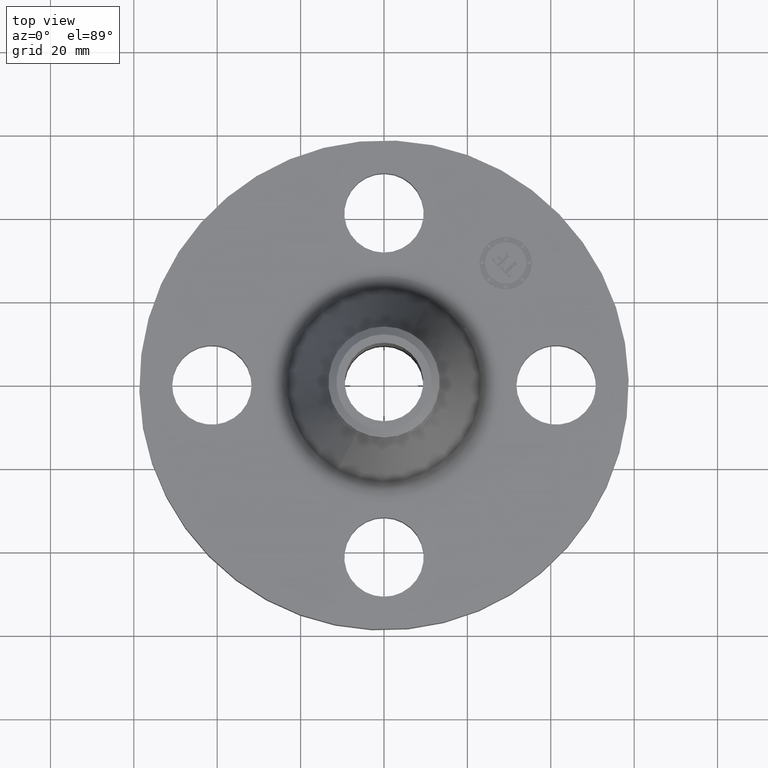
[diagram: clean part render]
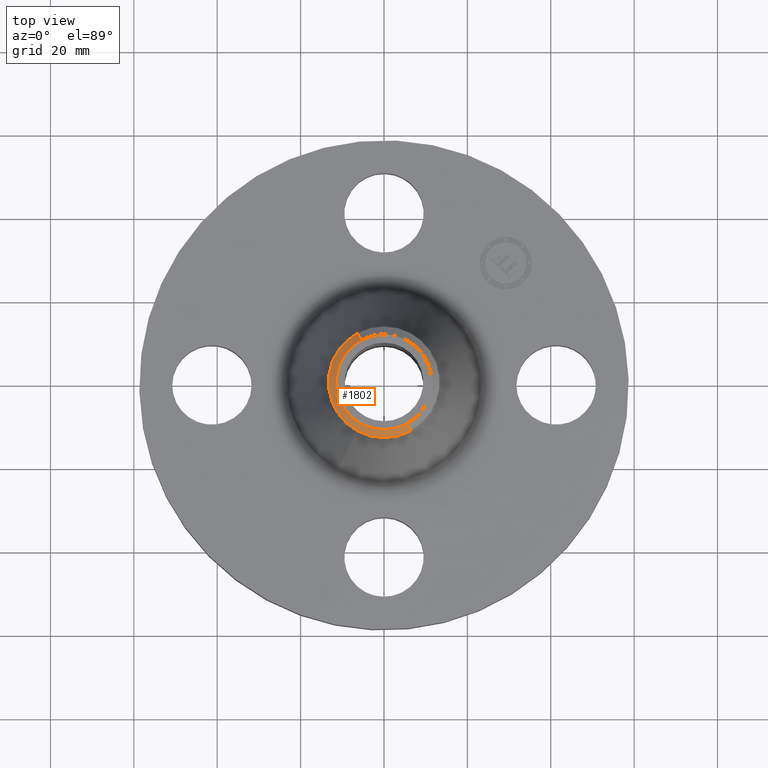
[diagram: same view with one face highlighted and labeled with its STEP entity id]
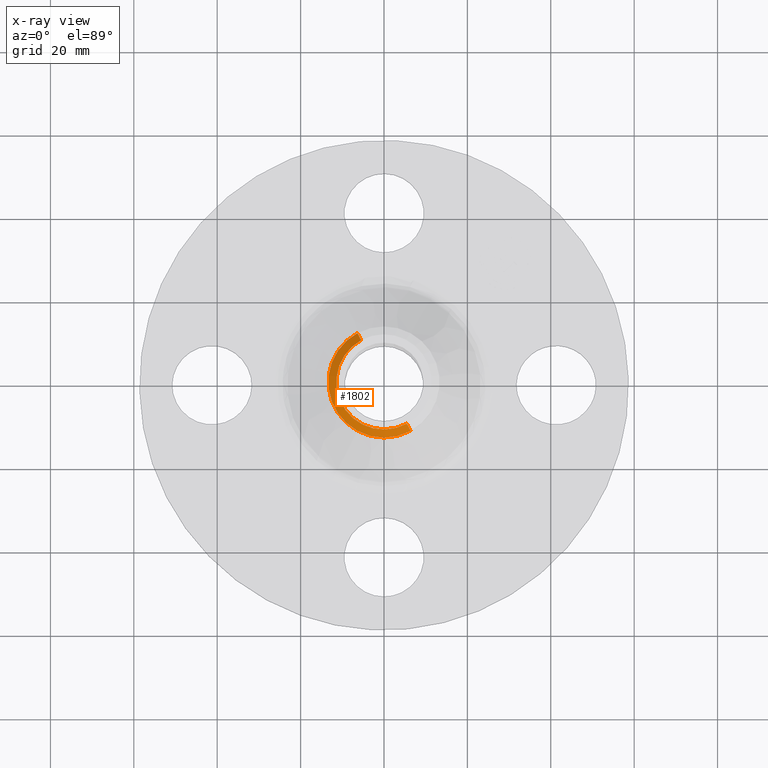
[diagram: x-ray of the same camera — body ghosted, the highlighted face saturated]
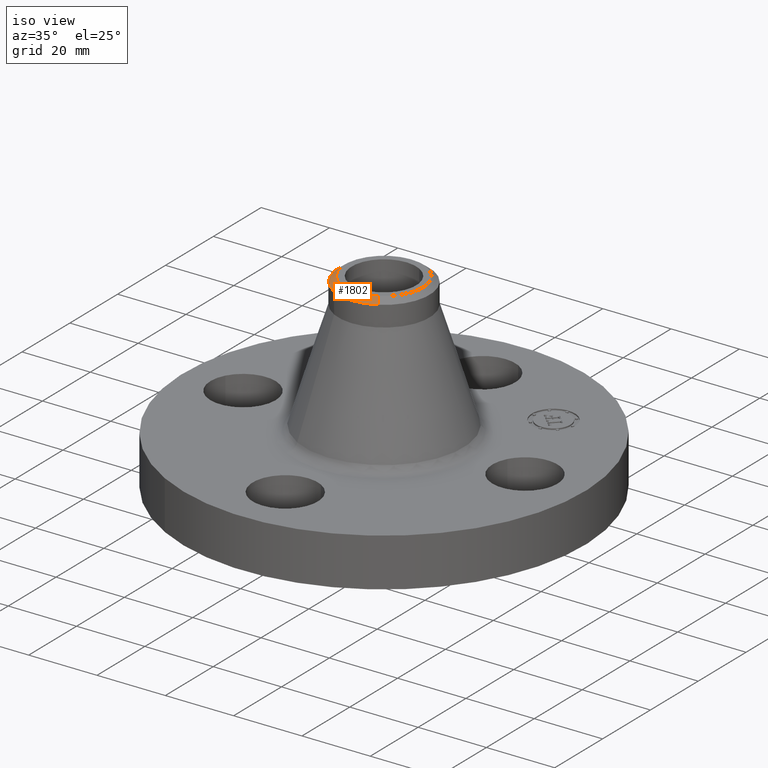
[diagram: same view with one face highlighted and labeled with its STEP entity id]
A machine part, top view. The second image highlights one B-rep face of the part: STEP entity #1802.
The next image is the same camera in x-ray: the body ghosted, the highlighted face saturated — about 0% of this face is hidden behind the body in this view.
A second angle (iso view) of the same face is appended — the face is thin or edge-on in the first view.
In plain terms, the highlighted conical surface has half-angle 52.5 deg.
Its self-contained STEP definition (entity closure, byte-faithful):
#1130=AXIS2_PLACEMENT_3D('Circle Axis2P3D',#1128,#1129,$) ;
#1169=AXIS2_PLACEMENT_3D('Circle Axis2P3D',#1167,#1168,$) ;
#1761=AXIS2_PLACEMENT_3D('Circle Axis2P3D',#1759,#1760,$) ;
#1783=AXIS2_PLACEMENT_3D('Cone Axis2P3D',#1780,#1781,#1782) ;
#1125=CARTESIAN_POINT('Vertex',(-0.251698407768,-0.460730844994,2.13225109173)) ;
#1128=CARTESIAN_POINT('Axis2P3D Location',(0.,0.,2.13225109173)) ;
#1132=CARTESIAN_POINT('Vertex',(-0.251698407768,0.460730844994,2.13225109173)) ;
#1164=CARTESIAN_POINT('Vertex',(0.251698407768,-0.460730844994,2.13225109173)) ;
#1167=CARTESIAN_POINT('Axis2P3D Location',(0.,0.,2.13225109173)) ;
#1754=CARTESIAN_POINT('Vertex',(0.215616917233,-0.394684119588,2.19000000001)) ;
#1756=CARTESIAN_POINT('Vertex',(-0.215616917233,0.394684119588,2.19000000001)) ;
#1759=CARTESIAN_POINT('Axis2P3D Location',(1.28117289306E-011,1.0465679067E-011,2.19000000001)) ;
#1780=CARTESIAN_POINT('Axis2P3D Location',(0.,0.,2.19000000001)) ;
#1785=CARTESIAN_POINT('Line Origine',(0.2336576625,-0.427707482289,2.16112554587)) ;
#1790=CARTESIAN_POINT('Line Origine',(-0.2336576625,0.427707482289,2.16112554587)) ;
#1129=DIRECTION('Axis2P3D Direction',(-0.,0.,-0.0393700787402)) ;
#1168=DIRECTION('Axis2P3D Direction',(-0.,0.,-0.0393700787402)) ;
#1760=DIRECTION('Axis2P3D Direction',(0.,0.,-0.0393700787402)) ;
#1781=DIRECTION('Axis2P3D Direction',(-0.,-0.,-0.0393700787402)) ;
#1782=DIRECTION('Axis2P3D XDirection',(0.0188750212049,-0.0345504945626,0.)) ;
#1786=DIRECTION('Vector Direction',(0.014974561121,-0.02741075027,-0.023966985394)) ;
#1791=DIRECTION('Vector Direction',(-0.014974561121,0.02741075027,-0.023966985394)) ;
#1787=VECTOR('Line Direction',#1786,0.0393700787402) ;
#1792=VECTOR('Line Direction',#1791,0.0393700787402) ;
#1796=ORIENTED_EDGE('',*,*,#1789,.F.) ;
#1797=ORIENTED_EDGE('',*,*,#1763,.F.) ;
#1798=ORIENTED_EDGE('',*,*,#1794,.T.) ;
#1799=ORIENTED_EDGE('',*,*,#1134,.T.) ;
#1800=ORIENTED_EDGE('',*,*,#1171,.F.) ;
#1802=ADVANCED_FACE('PartBody',(#1801),#1784,.T.) ;
#1131=CIRCLE('generated circle',#1130,0.525000000002) ;
#1170=CIRCLE('generated circle',#1169,0.525000000002) ;
#1762=CIRCLE('generated circle',#1761,0.449740157491) ;
#1784=CONICAL_SURFACE('Cone',#1783,0.449740157482,0.916297857297) ;
#1134=EDGE_CURVE('',#1133,#1126,#1131,.F.) ;
#1171=EDGE_CURVE('',#1165,#1126,#1170,.T.) ;
#1763=EDGE_CURVE('',#1757,#1755,#1762,.F.) ;
#1789=EDGE_CURVE('',#1755,#1165,#1788,.T.) ;
#1794=EDGE_CURVE('',#1757,#1133,#1793,.T.) ;
#1795=EDGE_LOOP('',(#1796,#1797,#1798,#1799,#1800)) ;
#1801=FACE_OUTER_BOUND('',#1795,.T.) ;
#1788=LINE('Line',#1785,#1787) ;
#1793=LINE('Line',#1790,#1792) ;
#1126=VERTEX_POINT('',#1125) ;
#1133=VERTEX_POINT('',#1132) ;
#1165=VERTEX_POINT('',#1164) ;
#1755=VERTEX_POINT('',#1754) ;
#1757=VERTEX_POINT('',#1756) ;